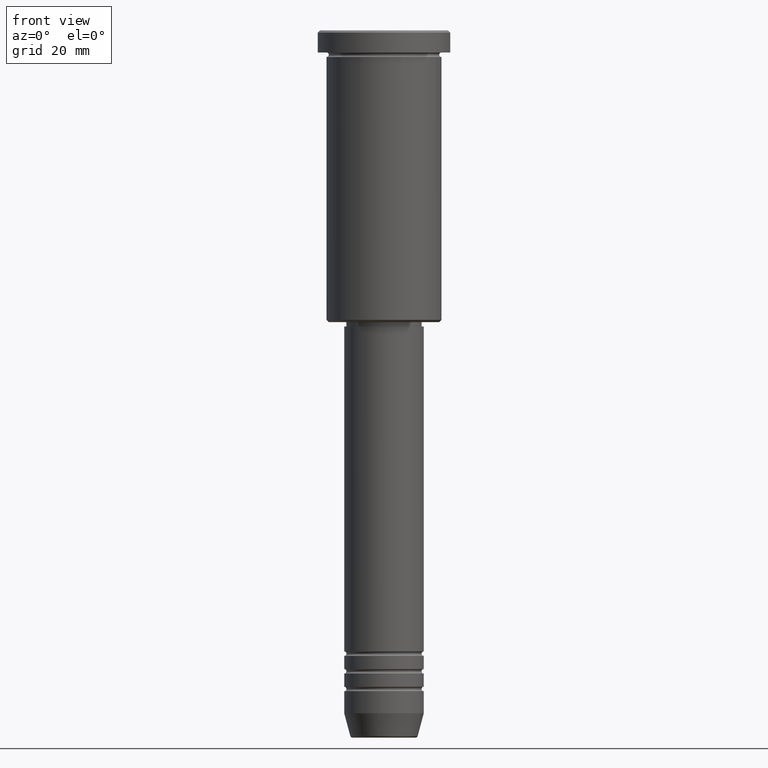
[diagram: clean part render]
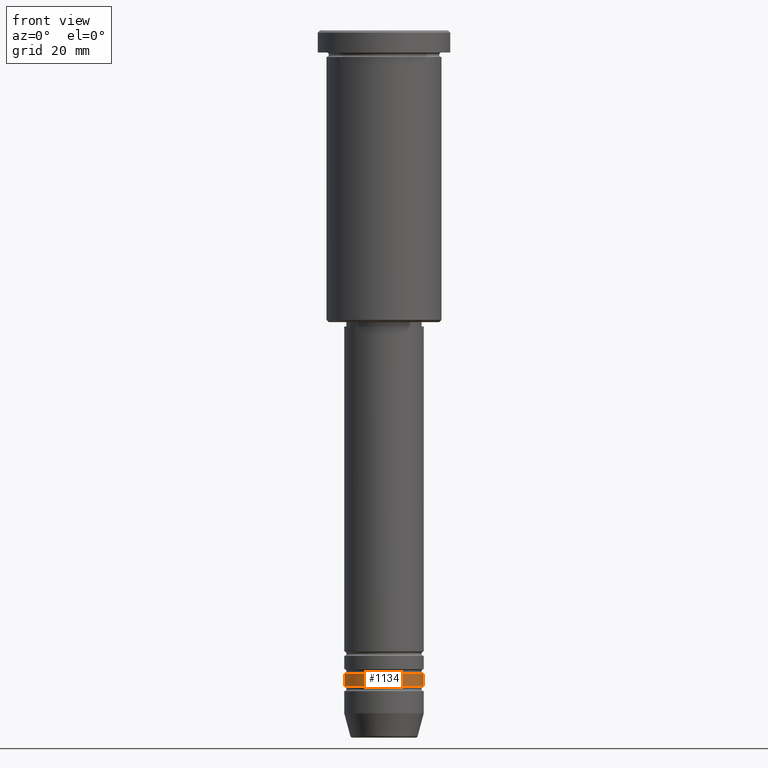
[diagram: same view with one face highlighted and labeled with its STEP entity id]
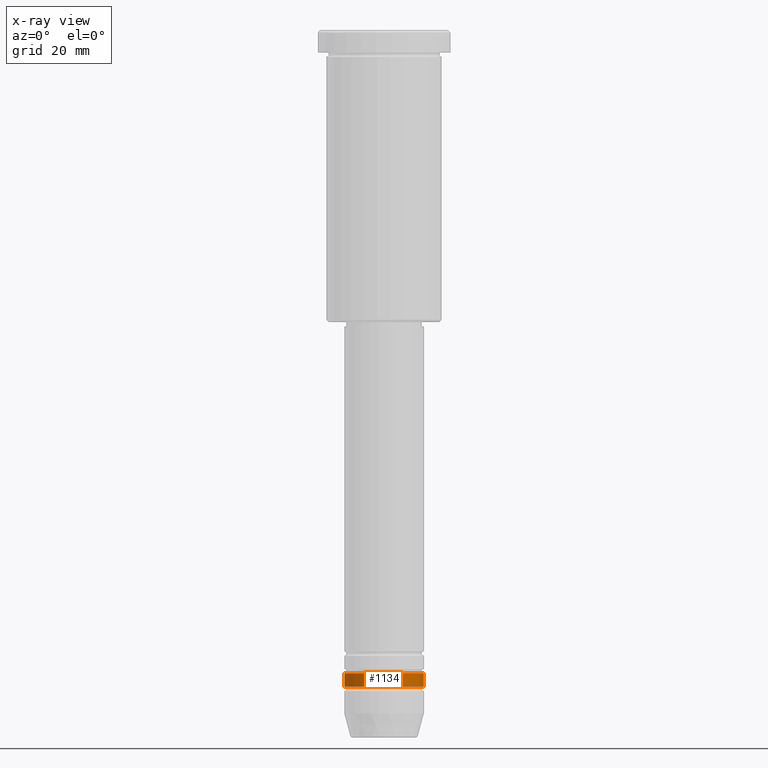
[diagram: x-ray of the same camera — body ghosted, the highlighted face saturated]
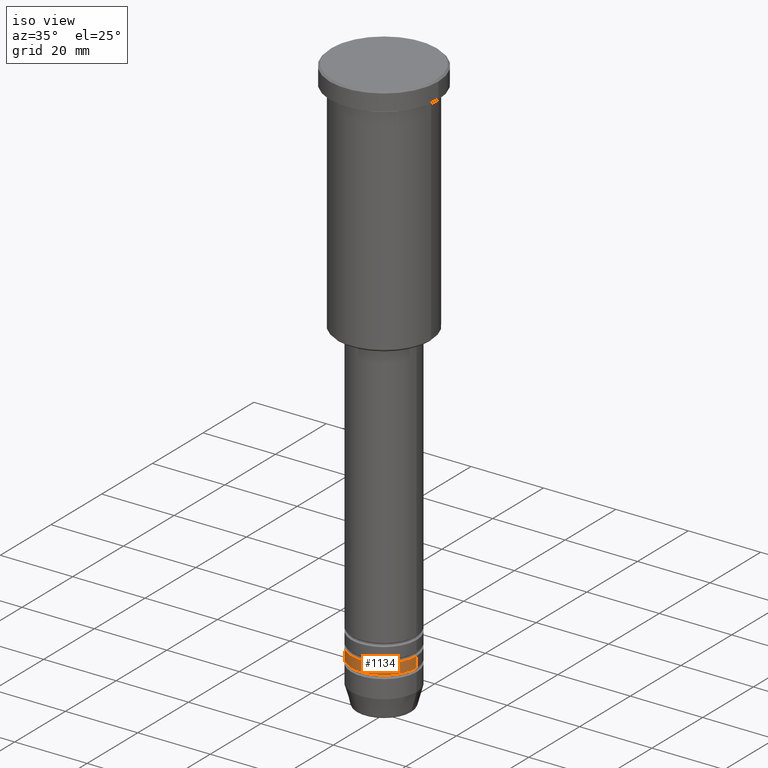
[diagram: same view with one face highlighted and labeled with its STEP entity id]
A machine part, front view. The second image highlights one B-rep face of the part: STEP entity #1134.
The next image is the same camera in x-ray: the body ghosted, the highlighted face saturated — about 0% of this face is hidden behind the body in this view.
A second angle (iso view) of the same face is appended — the face is thin or edge-on in the first view.
In plain terms, the highlighted cylindrical surface (partial cylindrical patch) has radius 9 mm, axis along (-0, -0, 1).
Its self-contained STEP definition (entity closure, byte-faithful):
#24 = DIRECTION ( 'NONE',  ( 1.000000000000000000, 0.000000000000000000, 0.000000000000000000 ) ) ;
#194 = VECTOR ( 'NONE', #264, 1000.000000000000000 ) ;
#216 = AXIS2_PLACEMENT_3D ( 'NONE', #1051, #234, #843 ) ;
#234 = DIRECTION ( 'NONE',  ( -0.000000000000000000, -0.000000000000000000, 1.000000000000000000 ) ) ;
#240 = CARTESIAN_POINT ( 'NONE',  ( -9.000000000000000000, 1.102182119232617714E-15, -145.5000000000000000 ) ) ;
#264 = DIRECTION ( 'NONE',  ( -0.000000000000000000, -0.000000000000000000, 1.000000000000000000 ) ) ;
#319 = LINE ( 'NONE', #1110, #839 ) ;
#323 = CARTESIAN_POINT ( 'NONE',  ( 0.000000000000000000, 0.000000000000000000, -145.5000000000000000 ) ) ;
#340 = CARTESIAN_POINT ( 'NONE',  ( -9.000000000000001776, 1.102182119232617911E-15, 0.000000000000000000 ) ) ;
#354 = EDGE_LOOP ( 'NONE', ( #549, #553, #642, #360 ) ) ;
#360 = ORIENTED_EDGE ( 'NONE', *, *, #818, .F. ) ;
#366 = AXIS2_PLACEMENT_3D ( 'NONE', #323, #486, #24 ) ;
#371 = DIRECTION ( 'NONE',  ( -0.000000000000000000, -0.000000000000000000, 1.000000000000000000 ) ) ;
#417 = EDGE_CURVE ( 'NONE', #1034, #673, #1101, .T. ) ;
#485 = VERTEX_POINT ( 'NONE', #240 ) ;
#486 = DIRECTION ( 'NONE',  ( -0.000000000000000000, -0.000000000000000000, 1.000000000000000000 ) ) ;
#508 = DIRECTION ( 'NONE',  ( -0.000000000000000000, -0.000000000000000000, 1.000000000000000000 ) ) ;
#538 = EDGE_CURVE ( 'NONE', #1034, #485, #1157, .T. ) ;
#549 = ORIENTED_EDGE ( 'NONE', *, *, #538, .F. ) ;
#553 = ORIENTED_EDGE ( 'NONE', *, *, #417, .T. ) ;
#572 = AXIS2_PLACEMENT_3D ( 'NONE', #1183, #371, #757 ) ;
#642 = ORIENTED_EDGE ( 'NONE', *, *, #827, .T. ) ;
#673 = VERTEX_POINT ( 'NONE', #1102 ) ;
#757 = DIRECTION ( 'NONE',  ( 1.000000000000000000, 0.000000000000000000, 0.000000000000000000 ) ) ;
#783 = CARTESIAN_POINT ( 'NONE',  ( 9.000000000000000000, 0.000000000000000000, -145.5000000000000000 ) ) ;
#818 = EDGE_CURVE ( 'NONE', #485, #861, #1122, .T. ) ;
#827 = EDGE_CURVE ( 'NONE', #673, #861, #319, .T. ) ;
#836 = FACE_OUTER_BOUND ( 'NONE', #354, .T. ) ;
#839 = VECTOR ( 'NONE', #508, 1000.000000000000000 ) ;
#843 = DIRECTION ( 'NONE',  ( 1.000000000000000000, 0.000000000000000000, 0.000000000000000000 ) ) ;
#845 = CARTESIAN_POINT ( 'NONE',  ( -9.000000000000001776, 1.102182119232617911E-15, -148.4999999999999716 ) ) ;
#861 = VERTEX_POINT ( 'NONE', #783 ) ;
#1034 = VERTEX_POINT ( 'NONE', #845 ) ;
#1051 = CARTESIAN_POINT ( 'NONE',  ( 0.000000000000000000, 0.000000000000000000, -148.4999999999999716 ) ) ;
#1101 = CIRCLE ( 'NONE', #216, 9.000000000000001776 ) ;
#1102 = CARTESIAN_POINT ( 'NONE',  ( 9.000000000000001776, 0.000000000000000000, -148.4999999999999716 ) ) ;
#1110 = CARTESIAN_POINT ( 'NONE',  ( 9.000000000000001776, 0.000000000000000000, 0.000000000000000000 ) ) ;
#1122 = CIRCLE ( 'NONE', #366, 9.000000000000000000 ) ;
#1134 = ADVANCED_FACE ( 'NONE', ( #836 ), #1167, .T. ) ;
#1157 = LINE ( 'NONE', #340, #194 ) ;
#1167 = CYLINDRICAL_SURFACE ( 'NONE', #572, 9.000000000000001776 ) ;
#1183 = CARTESIAN_POINT ( 'NONE',  ( 0.000000000000000000, 0.000000000000000000, 0.000000000000000000 ) ) ;